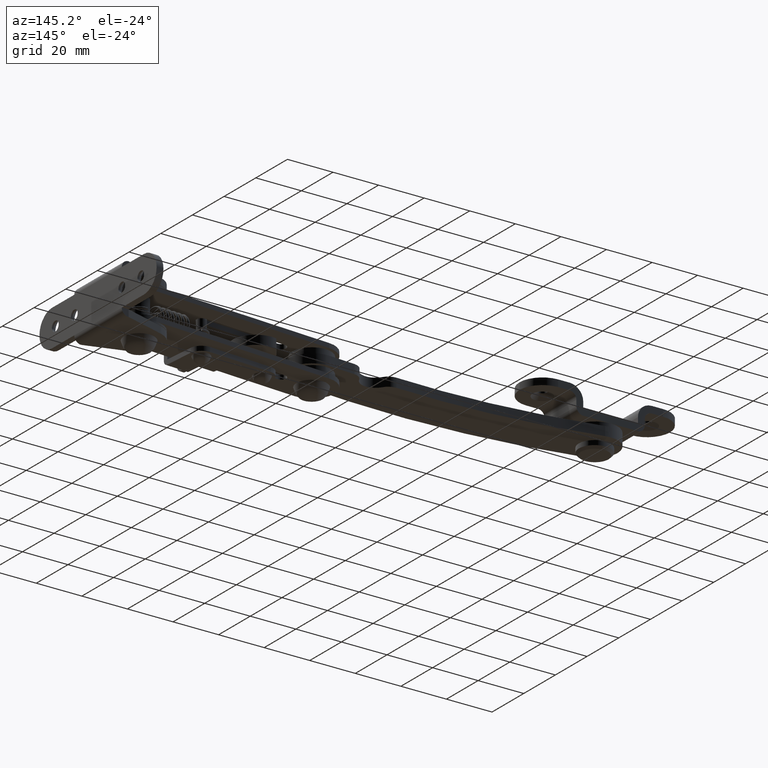
[diagram: clean part render]
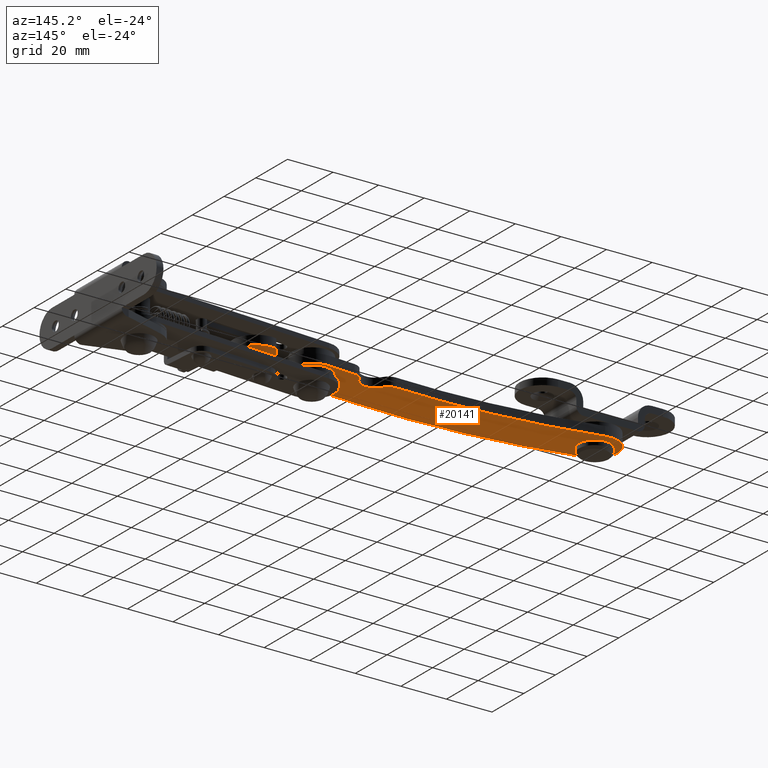
[diagram: same view with one face highlighted and labeled with its STEP entity id]
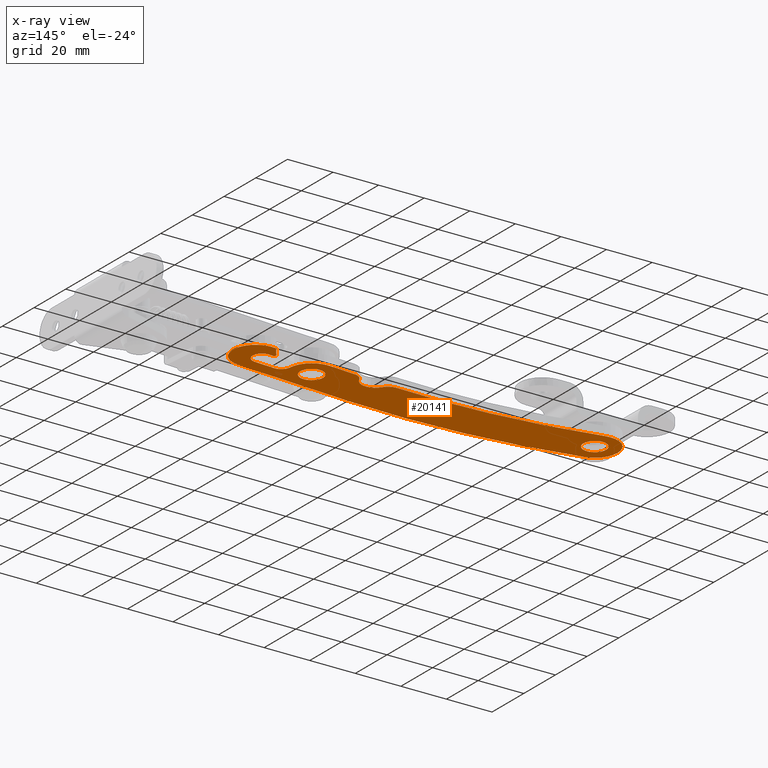
[diagram: x-ray of the same camera — body ghosted, the highlighted face saturated]
A machine part, auxiliary view. The second image highlights one B-rep face of the part: STEP entity #20141.
The next image is the same camera in x-ray: the body ghosted, the highlighted face saturated — about 0% of this face is hidden behind the body in this view.
In plain terms, the highlighted face is a freeform B-spline surface patch.
Its self-contained STEP definition (entity closure, byte-faithful):
#19511=CARTESIAN_POINT('',(-84.788350999999906,-5.815421000000001,-2.0));
#19512=VERTEX_POINT('',#19511);
#19513=CARTESIAN_POINT('',(-83.275510213567827,-9.398675092550821,-2.0));
#19514=VERTEX_POINT('',#19513);
#19515=CARTESIAN_POINT('',(-84.788350999999906,-5.815421000000001,-2.0));
#19516=CARTESIAN_POINT('',(-84.788931720960335,-6.439724145627165,-1.999999999999996));
#19517=CARTESIAN_POINT('',(-84.535506447734761,-7.770850359127526,-2.000000000000007));
#19518=CARTESIAN_POINT('',(-83.783319306921314,-8.905894034887666,-1.999999999999997));
#19519=CARTESIAN_POINT('',(-83.275510213567827,-9.398675092550821,-2.0));
#19520=B_SPLINE_CURVE_WITH_KNOTS('',3,(#19515,#19516,#19517,#19518,#19519),.UNSPECIFIED.,.F.,.U.,(4,1,4),(0.000000095102247,1.872697177985275,3.995045581834817),.UNSPECIFIED.);
#19521=EDGE_CURVE('',#19512,#19514,#19520,.T.);
#19523=CARTESIAN_POINT('',(-79.788355292563267,-0.815421000001843,-2.0));
#19524=VERTEX_POINT('',#19523);
#19525=CARTESIAN_POINT('',(-79.788355292563267,-0.815421000001843,-2.0));
#19526=CARTESIAN_POINT('',(-80.156492786757028,-0.815384814512204,-2.0));
#19527=CARTESIAN_POINT('',(-81.015542646682292,-0.910609526889808,-1.999999999999999));
#19528=CARTESIAN_POINT('',(-82.365992160470768,-1.431181861079022,-2.0));
#19529=CARTESIAN_POINT('',(-83.457034047185090,-2.326600122715894,-1.999999999999992));
#19530=CARTESIAN_POINT('',(-84.166767904567891,-3.335058403793417,-2.000000000000018));
#19531=CARTESIAN_POINT('',(-84.649980254992954,-4.424775511178697,-1.999999999999984));
#19532=CARTESIAN_POINT('',(-84.788620212822380,-5.283609012761139,-2.000000000000004));
#19533=CARTESIAN_POINT('',(-84.788350999999906,-5.815421000000001,-2.0));
#19534=B_SPLINE_CURVE_WITH_KNOTS('',3,(#19525,#19526,#19527,#19528,#19529,#19530,#19531,#19532,#19533),.UNSPECIFIED.,.F.,.U.,(4,1,1,1,1,1,4),(0.000000276248257,1.104458979310222,2.577173694218115,4.295184033422759,5.276996664739267,6.258814592202802,7.854176302263209),.UNSPECIFIED.);
#19535=EDGE_CURVE('',#19524,#19512,#19534,.T.);
#19537=CARTESIAN_POINT('',(-74.788350999999892,-5.815421000000001,-2.0));
#19538=VERTEX_POINT('',#19537);
#19539=CARTESIAN_POINT('',(-74.788350999999892,-5.815421000000001,-2.0));
#19540=CARTESIAN_POINT('',(-74.788288175906516,-5.447277528112433,-2.0));
#19541=CARTESIAN_POINT('',(-74.870056413698379,-4.710994160494185,-2.0));
#19542=CARTESIAN_POINT('',(-75.284877173262004,-3.504420092996745,-2.000000000000003));
#19543=CARTESIAN_POINT('',(-76.128457521297193,-2.274424862822200,-1.999999999999998));
#19544=CARTESIAN_POINT('',(-77.295561988879427,-1.408983350878549,-1.999999999999984));
#19545=CARTESIAN_POINT('',(-78.561262871616961,-0.921107224684289,-2.000000000000036));
#19546=CARTESIAN_POINT('',(-79.338385020031509,-0.815284408768726,-1.999999999999981));
#19547=CARTESIAN_POINT('',(-79.788355292563267,-0.815421000001843,-2.0));
#19548=B_SPLINE_CURVE_WITH_KNOTS('',3,(#19539,#19540,#19541,#19542,#19543,#19544,#19545,#19546,#19547),.UNSPECIFIED.,.F.,.U.,(4,1,1,1,1,1,4),(0.000000270373572,1.104459654429975,2.209001751290480,3.804398917488669,5.522453443067117,6.504271975497034,7.854181141103230),.UNSPECIFIED.);
#19549=EDGE_CURVE('',#19538,#19524,#19548,.T.);
#19551=CARTESIAN_POINT('',(-76.410398991674015,-9.501808244988993,-2.000000000033474));
#19552=VERTEX_POINT('',#19551);
#19553=CARTESIAN_POINT('',(-76.410398991674015,-9.501808244988993,-2.000000000033474));
#19554=CARTESIAN_POINT('',(-75.996259704665320,-9.122809819506125,-2.000000000030032));
#19555=CARTESIAN_POINT('',(-75.432472124418609,-8.396319215171070,-2.000000000023442));
#19556=CARTESIAN_POINT('',(-74.906188600082515,-7.110684568139142,-2.000000000011749));
#19557=CARTESIAN_POINT('',(-74.788148045852822,-6.290411538617271,-2.000000000004321));
#19558=CARTESIAN_POINT('',(-74.788350999999892,-5.815421000000001,-2.0));
#19559=B_SPLINE_CURVE_WITH_KNOTS('',3,(#19553,#19554,#19555,#19556,#19557,#19558),.UNSPECIFIED.,.F.,.U.,(4,1,1,4),(0.000000071100779,1.684036136903333,2.720318838654607,4.145272973169743),.UNSPECIFIED.);
#19560=EDGE_CURVE('',#19552,#19538,#19559,.T.);
#19640=CARTESIAN_POINT('',(-79.788346707436475,-10.815420999998160,-2.0));
#19641=VERTEX_POINT('',#19640);
#19642=CARTESIAN_POINT('',(-83.275510213567827,-9.398675092550821,-2.0));
#19643=CARTESIAN_POINT('',(-83.016270604559310,-9.651032556218191,-1.999999999999996));
#19644=CARTESIAN_POINT('',(-82.410849616189310,-10.124013935115350,-2.000000000000003));
#19645=CARTESIAN_POINT('',(-81.235385373366569,-10.669173568360909,-2.0));
#19646=CARTESIAN_POINT('',(-80.310949858571732,-10.815646522537760,-1.999999999999998));
#19647=CARTESIAN_POINT('',(-79.788346707436475,-10.815420999998160,-2.0));
#19648=B_SPLINE_CURVE_WITH_KNOTS('',3,(#19642,#19643,#19644,#19645,#19646,#19647),.UNSPECIFIED.,.F.,.U.,(4,1,1,4),(0.000000080225261,1.085384132295994,2.291335275245004,3.859136765245696),.UNSPECIFIED.);
#19649=EDGE_CURVE('',#19514,#19641,#19648,.T.);
#19673=CARTESIAN_POINT('',(-79.788346707436475,-10.815420999998160,-2.0));
#19674=CARTESIAN_POINT('',(-79.208776729432941,-10.815855079361331,-2.000000000005742));
#19675=CARTESIAN_POINT('',(-77.972858267119094,-10.597904826614100,-2.000000000017998));
#19676=CARTESIAN_POINT('',(-76.894195545416551,-9.946145296285026,-2.000000000028671));
#19677=CARTESIAN_POINT('',(-76.410398991674015,-9.501808244988993,-2.000000000033474));
#19678=B_SPLINE_CURVE_WITH_KNOTS('',3,(#19673,#19674,#19675,#19676,#19677),.UNSPECIFIED.,.F.,.U.,(4,1,4),(0.000000094177845,1.738574418628584,3.708904117308923),.UNSPECIFIED.);
#19679=EDGE_CURVE('',#19641,#19552,#19678,.T.);
#19710=CARTESIAN_POINT('',(-205.0,0.0,-2.0));
#19711=VERTEX_POINT('',#19710);
#19712=CARTESIAN_POINT('',(-203.487159213567990,-3.583254092550815,-2.0));
#19713=VERTEX_POINT('',#19712);
#19714=CARTESIAN_POINT('',(-205.0,0.0,-2.0));
#19715=CARTESIAN_POINT('',(-205.000521759162010,-0.624291567790946,-1.999999999999998));
#19716=CARTESIAN_POINT('',(-204.747247672153410,-1.955448795729696,-2.000000000000003));
#19717=CARTESIAN_POINT('',(-203.994935980477490,-3.090467272230687,-1.999999999999998));
#19718=CARTESIAN_POINT('',(-203.487159213567990,-3.583254092550815,-2.0));
#19719=B_SPLINE_CURVE_WITH_KNOTS('',3,(#19714,#19715,#19716,#19717,#19718),.UNSPECIFIED.,.F.,.U.,(4,1,4),(0.000000095100441,1.872697177984805,3.995045581834784),.UNSPECIFIED.);
#19720=EDGE_CURVE('',#19711,#19713,#19719,.T.);
#19722=CARTESIAN_POINT('',(-200.000004292563400,4.999999999998158,-2.0));
#19723=VERTEX_POINT('',#19722);
#19724=CARTESIAN_POINT('',(-200.000004292563400,4.999999999998158,-2.0));
#19725=CARTESIAN_POINT('',(-200.654602014344900,5.000676818404667,-1.999999999999994));
#19726=CARTESIAN_POINT('',(-201.758565184714310,4.779932675856867,-2.000000000000017));
#19727=CARTESIAN_POINT('',(-203.006718663757310,4.052221855991087,-1.999999999999979));
#19728=CARTESIAN_POINT('',(-203.810455788549290,3.286922955601273,-2.000000000000037));
#19729=CARTESIAN_POINT('',(-204.331096403778390,2.547607843291014,-1.999999999999959));
#19730=CARTESIAN_POINT('',(-204.839826123688510,1.472311092986196,-2.000000000000053));
#19731=CARTESIAN_POINT('',(-205.000578915605700,0.613703225390966,-1.999999999999981));
#19732=CARTESIAN_POINT('',(-205.0,0.0,-2.0));
#19733=B_SPLINE_CURVE_WITH_KNOTS('',3,(#19724,#19725,#19726,#19727,#19728,#19729,#19730,#19731,#19732),.UNSPECIFIED.,.F.,.U.,(4,1,1,1,1,1,4),(0.000000276241765,1.963545063107508,3.313546348395573,4.295184033417926,5.276996664735438,6.013356014765927,7.854176302263309),.UNSPECIFIED.);
#19734=EDGE_CURVE('',#19723,#19711,#19733,.T.);
#19736=CARTESIAN_POINT('',(-195.0,0.0,-2.0));
#19737=VERTEX_POINT('',#19736);
#19738=CARTESIAN_POINT('',(-195.0,0.0,-2.0));
#19739=CARTESIAN_POINT('',(-194.999964871254490,0.368135711623630,-2.0));
#19740=CARTESIAN_POINT('',(-195.095189782965290,1.227190166885058,-2.0));
#19741=CARTESIAN_POINT('',(-195.615750090610190,2.577643608658196,-2.0));
#19742=CARTESIAN_POINT('',(-196.563880176282310,3.732861726087164,-2.000000000000002));
#19743=CARTESIAN_POINT('',(-197.660742192958000,4.465333288401948,-1.999999999999990));
#19744=CARTESIAN_POINT('',(-198.772894848237000,4.894337096012547,-2.000000000000018));
#19745=CARTESIAN_POINT('',(-199.550031510852390,5.000153768885373,-1.999999999999989));
#19746=CARTESIAN_POINT('',(-200.000004292563400,4.999999999998158,-2.0));
#19747=B_SPLINE_CURVE_WITH_KNOTS('',3,(#19738,#19739,#19740,#19741,#19742,#19743,#19744,#19745,#19746),.UNSPECIFIED.,.F.,.U.,(4,1,1,1,1,1,4),(0.000000270363371,1.104459654421302,2.577175276281683,4.295186676839771,5.522453443065943,6.504271975496721,7.854181141103240),.UNSPECIFIED.);
#19748=EDGE_CURVE('',#19737,#19723,#19747,.T.);
#19750=CARTESIAN_POINT('',(-196.622047991674090,-3.686387244989001,-2.000000000033474));
#19751=VERTEX_POINT('',#19750);
#19752=CARTESIAN_POINT('',(-196.622047991674090,-3.686387244989001,-2.000000000033474));
#19753=CARTESIAN_POINT('',(-196.207869154207600,-3.307418674365055,-2.000000000030037));
#19754=CARTESIAN_POINT('',(-195.644157481780500,-2.580875579495114,-2.000000000023432));
#19755=CARTESIAN_POINT('',(-195.117823147005200,-1.295266385144715,-2.000000000011760));
#19756=CARTESIAN_POINT('',(-194.999809252774500,-0.474990584514368,-2.000000000004318));
#19757=CARTESIAN_POINT('',(-195.0,0.0,-2.0));
#19758=B_SPLINE_CURVE_WITH_KNOTS('',3,(#19752,#19753,#19754,#19755,#19756,#19757),.UNSPECIFIED.,.F.,.U.,(4,1,1,4),(0.000000071102684,1.684036136903630,2.720318838654617,4.145272973169752),.UNSPECIFIED.);
#19759=EDGE_CURVE('',#19751,#19737,#19758,.T.);
#19839=CARTESIAN_POINT('',(-199.999995707436600,-4.999999999998158,-2.0));
#19840=VERTEX_POINT('',#19839);
#19841=CARTESIAN_POINT('',(-203.487159213567990,-3.583254092550815,-2.0));
#19842=CARTESIAN_POINT('',(-203.112823244218790,-3.947968763721883,-2.0));
#19843=CARTESIAN_POINT('',(-202.414591923277900,-4.440582645822707,-2.000000000000002));
#19844=CARTESIAN_POINT('',(-201.205881048739200,-4.898006576356504,-1.999999999999998));
#19845=CARTESIAN_POINT('',(-200.442193534959900,-5.000126444860298,-2.000000000000003));
#19846=CARTESIAN_POINT('',(-199.999995707436600,-4.999999999998158,-2.0));
#19847=B_SPLINE_CURVE_WITH_KNOTS('',3,(#19841,#19842,#19843,#19844,#19845,#19846),.UNSPECIFIED.,.F.,.U.,(4,1,1,4),(0.000000080226125,1.567801570090218,2.532542669967435,3.859136765245747),.UNSPECIFIED.);
#19848=EDGE_CURVE('',#19713,#19840,#19847,.T.);
#19871=CARTESIAN_POINT('',(-199.999995707436600,-4.999999999998158,-2.0));
#19872=CARTESIAN_POINT('',(-199.420432088071290,-5.000414941167579,-2.000000000005742));
#19873=CARTESIAN_POINT('',(-198.184469815235390,-4.782563716143690,-2.000000000017994));
#19874=CARTESIAN_POINT('',(-197.105882371912910,-4.130656723435116,-2.000000000028676));
#19875=CARTESIAN_POINT('',(-196.622047991674090,-3.686387244989001,-2.000000000033474));
#19876=B_SPLINE_CURVE_WITH_KNOTS('',3,(#19871,#19872,#19873,#19874,#19875),.UNSPECIFIED.,.F.,.U.,(4,1,4),(0.000000094178433,1.738574418628312,3.708904117308962),.UNSPECIFIED.);
#19877=EDGE_CURVE('',#19840,#19751,#19876,.T.);
#19882=CARTESIAN_POINT('',(-35.558285765473457,11.416736164405750,-2.0));
#19883=CARTESIAN_POINT('',(-218.296769145892710,11.416736164405750,-2.0));
#19884=CARTESIAN_POINT('',(-35.558285765473457,-19.823862003235590,-2.0));
#19885=CARTESIAN_POINT('',(-218.296769145892710,-19.823862003235590,-2.0));
#19886=B_SPLINE_SURFACE_WITH_KNOTS('',1,1,((#19882,#19884),(#19883,#19885)),.UNSPECIFIED.,.F.,.F.,.U.,(2,2),(2,2),(0.0,182.738483380419210),(0.0,31.240598167641341),.UNSPECIFIED.);
#19887=CARTESIAN_POINT('',(-92.186359999999993,3.307469000000000,-2.0));
#19888=VERTEX_POINT('',#19887);
#19889=CARTESIAN_POINT('',(-96.429942866314803,0.263665469242773,-2.0));
#19890=VERTEX_POINT('',#19889);
#19891=CARTESIAN_POINT('',(-92.186359999999993,3.307469000000000,-2.0));
#19892=CARTESIAN_POINT('',(-92.757297959450426,3.266260052117344,-1.999999999999997));
#19893=CARTESIAN_POINT('',(-93.799681576441358,3.005541669610911,-2.000000000000007));
#19894=CARTESIAN_POINT('',(-95.023385090222774,2.234751224883549,-1.999999999999998));
#19895=CARTESIAN_POINT('',(-95.887962179156091,1.308462542587660,-2.000000000000004));
#19896=CARTESIAN_POINT('',(-96.274326995163548,0.632866704402308,-1.999999999999999));
#19897=CARTESIAN_POINT('',(-96.429942866314803,0.263665469242773,-2.0));
#19898=B_SPLINE_CURVE_WITH_KNOTS('',3,(#19891,#19892,#19893,#19894,#19895,#19896,#19897),.UNSPECIFIED.,.F.,.U.,(4,1,1,1,4),(0.000000211328802,1.717114540084516,3.176644864646243,4.292773350805315,5.494740645932948),.UNSPECIFIED.);
#19899=EDGE_CURVE('',#19888,#19890,#19898,.T.);
#19900=ORIENTED_EDGE('',*,*,#19899,.F.);
#19901=CARTESIAN_POINT('',(-80.918719195116793,4.128717940007211,-2.0));
#19902=VERTEX_POINT('',#19901);
#19903=CARTESIAN_POINT('',(-80.918719195116793,4.128717940007211,-2.0));
#19904=CARTESIAN_POINT('',(-92.186359999999993,3.307469000000000,-2.0));
#19905=QUASI_UNIFORM_CURVE('',1,(#19903,#19904),.UNSPECIFIED.,.F.,.U.);
#19906=EDGE_CURVE('',#19902,#19888,#19905,.T.);
#19907=ORIENTED_EDGE('',*,*,#19906,.F.);
#19908=CARTESIAN_POINT('',(-69.794255091298893,-5.284687090792980,-2.0));
#19909=VERTEX_POINT('',#19908);
#19910=CARTESIAN_POINT('',(-69.794255091298893,-5.284687090792980,-2.0));
#19911=CARTESIAN_POINT('',(-69.856471819187220,-4.095967069323744,-2.000000000000005));
#19912=CARTESIAN_POINT('',(-70.253968447017172,-2.415094185332521,-1.999999999999994));
#19913=CARTESIAN_POINT('',(-71.330225878230948,-0.379940983263887,-2.000000000000005));
#19914=CARTESIAN_POINT('',(-72.443444743328541,1.078838472794587,-1.999999999999999));
#19915=CARTESIAN_POINT('',(-74.144909155038505,2.575680002505811,-1.999999999999994));
#19916=CARTESIAN_POINT('',(-76.170189576117068,3.611916248749655,-2.000000000000008));
#19917=CARTESIAN_POINT('',(-78.531090039385163,4.198366088733373,-1.999999999999979));
#19918=CARTESIAN_POINT('',(-80.031799040218772,4.229847638465271,-2.000000000000028));
#19919=CARTESIAN_POINT('',(-80.918719195116793,4.128717940007211,-2.0));
#19920=B_SPLINE_CURVE_WITH_KNOTS('',3,(#19910,#19911,#19912,#19913,#19914,#19915,#19916,#19917,#19918,#19919),.UNSPECIFIED.,.F.,.U.,(4,1,1,1,1,1,1,4),(0.000000325597121,3.570582351706927,5.100860553462065,6.886215978141378,9.053928641832957,11.859473305756030,13.644800294678060,16.322722378079771),.UNSPECIFIED.);
#19921=EDGE_CURVE('',#19909,#19902,#19920,.T.);
#19922=ORIENTED_EDGE('',*,*,#19921,.F.);
#19923=CARTESIAN_POINT('',(-65.426976924390701,-8.870143899293268,-2.0));
#19924=VERTEX_POINT('',#19923);
#19925=CARTESIAN_POINT('',(-69.794255091298893,-5.284687090792980,-2.0));
#19926=CARTESIAN_POINT('',(-69.723323331819330,-5.864994813084483,-2.0));
#19927=CARTESIAN_POINT('',(-69.436495738974557,-6.679344344186184,-2.000000000000004));
#19928=CARTESIAN_POINT('',(-68.690460117137306,-7.669098191899468,-1.999999999999997));
#19929=CARTESIAN_POINT('',(-67.828712159298718,-8.376951215688662,-1.999999999999997));
#19930=CARTESIAN_POINT('',(-66.666319315338811,-8.839152058503458,-2.000000000000010));
#19931=CARTESIAN_POINT('',(-65.815556012476236,-8.898610155486020,-1.999999999999998));
#19932=CARTESIAN_POINT('',(-65.426976924390701,-8.870143899293268,-2.0));
#19933=B_SPLINE_CURVE_WITH_KNOTS('',3,(#19925,#19926,#19927,#19928,#19929,#19930,#19931,#19932),.UNSPECIFIED.,.F.,.U.,(4,1,1,1,1,4),(0.000000430223754,1.753341825283300,2.532647464503808,3.701410686798994,5.065175280165926,6.234057721081355),.UNSPECIFIED.);
#19934=EDGE_CURVE('',#19909,#19924,#19933,.T.);
#19935=ORIENTED_EDGE('',*,*,#19934,.T.);
#19936=CARTESIAN_POINT('',(-56.550587276168599,-8.222547400474220,-2.0));
#19937=VERTEX_POINT('',#19936);
#19938=CARTESIAN_POINT('',(-56.550587276168599,-8.222547400474220,-2.0));
#19939=CARTESIAN_POINT('',(-65.426976924390701,-8.870143899293268,-2.0));
#19940=QUASI_UNIFORM_CURVE('',1,(#19938,#19939),.UNSPECIFIED.,.F.,.U.);
#19941=EDGE_CURVE('',#19937,#19924,#19940,.T.);
#19942=ORIENTED_EDGE('',*,*,#19941,.F.);
#19943=CARTESIAN_POINT('',(-52.760344547808259,-3.827295574336168,-2.0));
#19944=VERTEX_POINT('',#19943);
#19945=CARTESIAN_POINT('',(-56.550587276168599,-8.222547400474220,-2.0));
#19946=CARTESIAN_POINT('',(-56.048049119864572,-8.186360390095064,-2.000000000000003));
#19947=CARTESIAN_POINT('',(-55.288561599549027,-7.985841606362258,-2.0));
#19948=CARTESIAN_POINT('',(-54.391139373647732,-7.448115691017598,-1.999999999999999));
#19949=CARTESIAN_POINT('',(-53.791042255251902,-6.904233319366627,-2.000000000000002));
#19950=CARTESIAN_POINT('',(-53.288651506453903,-6.226490225031332,-1.999999999999996));
#19951=CARTESIAN_POINT('',(-52.824618248044452,-5.212531622101427,-2.000000000000012));
#19952=CARTESIAN_POINT('',(-52.719646243917083,-4.363198950654213,-1.999999999999982));
#19953=CARTESIAN_POINT('',(-52.760344547808259,-3.827295574336168,-2.0));
#19954=B_SPLINE_CURVE_WITH_KNOTS('',3,(#19945,#19946,#19947,#19948,#19949,#19950,#19951,#19952,#19953),.UNSPECIFIED.,.F.,.U.,(4,1,1,1,1,1,4),(0.000000428301348,1.511301879306830,2.317354596842582,3.123428024045169,3.929343065691260,4.836184573402721,6.448245956228643),.UNSPECIFIED.);
#19955=EDGE_CURVE('',#19937,#19944,#19954,.T.);
#19956=ORIENTED_EDGE('',*,*,#19955,.T.);
#19957=CARTESIAN_POINT('',(-57.162790092886993,-0.045410888405738,-2.0));
#19958=VERTEX_POINT('',#19957);
#19959=CARTESIAN_POINT('',(-52.760344547808259,-3.827295574336168,-2.0));
#19960=CARTESIAN_POINT('',(-52.797490477495991,-3.324839867847665,-1.999999999999999));
#19961=CARTESIAN_POINT('',(-53.017014830528751,-2.499694864396662,-1.999999999999999));
#19962=CARTESIAN_POINT('',(-53.724795377842781,-1.385749240167113,-2.000000000000001));
#19963=CARTESIAN_POINT('',(-54.577919433569129,-0.652983119749935,-1.999999999999998));
#19964=CARTESIAN_POINT('',(-55.777456690133398,-0.107080429423319,-2.000000000000007));
#19965=CARTESIAN_POINT('',(-56.626963434280391,-0.003693024814359,-1.999999999999981));
#19966=CARTESIAN_POINT('',(-57.162790092886993,-0.045410888405738,-2.0));
#19967=B_SPLINE_CURVE_WITH_KNOTS('',3,(#19959,#19960,#19961,#19962,#19963,#19964,#19965,#19966),.UNSPECIFIED.,.F.,.U.,(4,1,1,1,1,4),(0.000000428301570,1.511301879307455,2.518903113248466,3.929343065691813,4.836184573403075,6.448245956228585),.UNSPECIFIED.);
#19968=EDGE_CURVE('',#19944,#19958,#19967,.T.);
#19969=ORIENTED_EDGE('',*,*,#19968,.T.);
#19970=CARTESIAN_POINT('',(-59.642173624790900,-0.226279617267992,-2.0));
#19971=VERTEX_POINT('',#19970);
#19972=CARTESIAN_POINT('',(-59.642173624790900,-0.226279617267992,-2.0));
#19973=CARTESIAN_POINT('',(-57.162790092886993,-0.045410888405738,-2.0));
#19974=QUASI_UNIFORM_CURVE('',1,(#19972,#19973),.UNSPECIFIED.,.F.,.U.);
#19975=EDGE_CURVE('',#19971,#19958,#19974,.T.);
#19976=ORIENTED_EDGE('',*,*,#19975,.F.);
#19977=CARTESIAN_POINT('',(-59.715329715130302,0.771041611744623,-2.0));
#19978=VERTEX_POINT('',#19977);
#19979=CARTESIAN_POINT('',(-59.715329715130302,0.771041611744623,-2.0));
#19980=CARTESIAN_POINT('',(-59.642173624790900,-0.226279617267992,-2.0));
#19981=QUASI_UNIFORM_CURVE('',1,(#19979,#19980),.UNSPECIFIED.,.F.,.U.);
#19982=EDGE_CURVE('',#19978,#19971,#19981,.T.);
#19983=ORIENTED_EDGE('',*,*,#19982,.F.);
#19984=CARTESIAN_POINT('',(-56.181020907877901,5.811027640821000,-2.0));
#19985=VERTEX_POINT('',#19984);
#19986=CARTESIAN_POINT('',(-56.181020907877901,5.811027640821000,-2.0));
#19987=CARTESIAN_POINT('',(-59.715329715130302,0.771041611744623,-2.0));
#19988=QUASI_UNIFORM_CURVE('',1,(#19986,#19987),.UNSPECIFIED.,.F.,.U.);
#19989=EDGE_CURVE('',#19985,#19978,#19988,.T.);
#19990=ORIENTED_EDGE('',*,*,#19989,.F.);
#19991=CARTESIAN_POINT('',(-43.984947721890457,-2.319929135162489,-2.0));
#19992=VERTEX_POINT('',#19991);
#19993=CARTESIAN_POINT('',(-43.984947721890457,-2.319929135162489,-2.0));
#19994=CARTESIAN_POINT('',(-44.114599097572821,-1.516293044250823,-2.000000000000014));
#19995=CARTESIAN_POINT('',(-44.475640359720607,-0.272802681943528,-1.999999999999993));
#19996=CARTESIAN_POINT('',(-45.399021691855268,1.522285683057435,-1.999999999999999));
#19997=CARTESIAN_POINT('',(-46.659101476704770,3.162984844021812,-2.000000000000012));
#19998=CARTESIAN_POINT('',(-48.274006886782061,4.463478721072548,-1.999999999999986));
#19999=CARTESIAN_POINT('',(-49.989547280801787,5.353699536693743,-2.000000000000005));
#20000=CARTESIAN_POINT('',(-51.501275455372351,5.851510652387903,-1.999999999999999));
#20001=CARTESIAN_POINT('',(-53.625349254984670,6.174893822160672,-2.000000000000004));
#20002=CARTESIAN_POINT('',(-55.181014311436158,6.050546200793963,-1.999999999999992));
#20003=CARTESIAN_POINT('',(-56.181020907877901,5.811027640821000,-2.0));
#20004=B_SPLINE_CURVE_WITH_KNOTS('',3,(#19993,#19994,#19995,#19996,#19997,#19998,#19999,#20000,#20001,#20002,#20003),.UNSPECIFIED.,.F.,.U.,(4,1,1,1,1,1,1,1,4),(0.000000317072040,2.442034193618344,3.855843221125147,6.040838069777005,8.611370300917107,10.025172702280271,11.824581711255091,13.366946863308380,16.451594321075909),.UNSPECIFIED.);
#20005=EDGE_CURVE('',#19992,#19985,#20004,.T.);
#20006=ORIENTED_EDGE('',*,*,#20005,.F.);
#20007=CARTESIAN_POINT('',(-52.999404670074703,-13.878312489965021,-2.0));
#20008=VERTEX_POINT('',#20007);
#20009=CARTESIAN_POINT('',(-52.999404670074703,-13.878312489965021,-2.0));
#20010=CARTESIAN_POINT('',(-51.974858336979047,-13.790625516112071,-2.000000000000001));
#20011=CARTESIAN_POINT('',(-50.417112570754881,-13.408404868471070,-2.000000000000002));
#20012=CARTESIAN_POINT('',(-48.317331716359412,-12.320920210629890,-1.999999999999999));
#20013=CARTESIAN_POINT('',(-46.871933948082813,-11.158992650664921,-2.0));
#20014=CARTESIAN_POINT('',(-45.569443131248462,-9.615502347261321,-2.000000000000002));
#20015=CARTESIAN_POINT('',(-44.551170769758727,-7.814736058157132,-1.999999999999998));
#20016=CARTESIAN_POINT('',(-43.815372178295043,-5.286666800281473,-2.0));
#20017=CARTESIAN_POINT('',(-43.813488539080659,-3.377248013298266,-2.000000000000011));
#20018=CARTESIAN_POINT('',(-43.984947721890457,-2.319929135162489,-2.0));
#20019=B_SPLINE_CURVE_WITH_KNOTS('',3,(#20009,#20010,#20011,#20012,#20013,#20014,#20015,#20016,#20017,#20018),.UNSPECIFIED.,.F.,.U.,(4,1,1,1,1,1,1,4),(0.000000317060799,3.084658940123020,4.755556895508077,7.069067007620001,8.611370316564649,10.796344353314010,13.238398908795061,16.451594350977619),.UNSPECIFIED.);
#20020=EDGE_CURVE('',#20008,#19992,#20019,.T.);
#20021=ORIENTED_EDGE('',*,*,#20020,.F.);
#20022=CARTESIAN_POINT('',(-55.032597992576001,-14.037570268062760,-2.0));
#20023=VERTEX_POINT('',#20022);
#20024=CARTESIAN_POINT('',(-55.032597992576001,-14.037570268062760,-2.0));
#20025=CARTESIAN_POINT('',(-52.999404670074703,-13.878312489965021,-2.0));
#20026=QUASI_UNIFORM_CURVE('',1,(#20024,#20025),.UNSPECIFIED.,.F.,.U.);
#20027=EDGE_CURVE('',#20023,#20008,#20026,.T.);
#20028=ORIENTED_EDGE('',*,*,#20027,.F.);
#20029=CARTESIAN_POINT('',(-105.109686107376600,-17.680460348629602,-2.0));
#20030=VERTEX_POINT('',#20029);
#20031=CARTESIAN_POINT('',(-105.109686107376600,-17.680460348629602,-2.0));
#20032=CARTESIAN_POINT('',(-55.032597992576001,-14.037570268062760,-2.0));
#20033=QUASI_UNIFORM_CURVE('',1,(#20031,#20032),.UNSPECIFIED.,.F.,.U.);
#20034=EDGE_CURVE('',#20030,#20023,#20033,.T.);
#20035=ORIENTED_EDGE('',*,*,#20034,.F.);
#20036=CARTESIAN_POINT('',(-202.273549594403990,-9.738119543412120,-2.0));
#20037=VERTEX_POINT('',#20036);
#20038=CARTESIAN_POINT('',(-202.273549594403990,-9.738119543412120,-2.0));
#20039=CARTESIAN_POINT('',(-154.282869479642410,-20.942458850689132,-2.000000000000000));
#20040=CARTESIAN_POINT('',(-105.109686107376700,-17.680460348629520,-2.0));
#20048=(BOUNDED_CURVE()B_SPLINE_CURVE(2,(#20038,#20039,#20040),.UNSPECIFIED.,.F.,.U.)CURVE()GEOMETRIC_REPRESENTATION_ITEM()QUASI_UNIFORM_CURVE()RATIONAL_B_SPLINE_CURVE((1.0,0.989097409568606,1.0))REPRESENTATION_ITEM(''));
#20049=EDGE_CURVE('',#20037,#20030,#20048,.T.);
#20050=ORIENTED_EDGE('',*,*,#20049,.F.);
#20051=CARTESIAN_POINT('',(-209.738120362302000,2.273546086913526,-2.0));
#20052=VERTEX_POINT('',#20051);
#20053=CARTESIAN_POINT('',(-209.738120362302000,2.273546086913526,-2.0));
#20054=CARTESIAN_POINT('',(-209.877647400488090,1.676038462332766,-1.999999999999998));
#20055=CARTESIAN_POINT('',(-210.068902496960190,0.292454749398031,-2.000000000000003));
#20056=CARTESIAN_POINT('',(-209.910599753024000,-1.925884626173666,-1.999999999999997));
#20057=CARTESIAN_POINT('',(-209.192553547762910,-4.162777731075307,-2.000000000000008));
#20058=CARTESIAN_POINT('',(-208.063899529239790,-6.029333395725431,-1.999999999999991));
#20059=CARTESIAN_POINT('',(-206.641609677171800,-7.567656920852143,-2.000000000000013));
#20060=CARTESIAN_POINT('',(-204.768608411585010,-8.910705115528334,-1.999999999999979));
#20061=CARTESIAN_POINT('',(-203.189861597645200,-9.524552913153300,-2.000000000000030));
#20062=CARTESIAN_POINT('',(-202.273549594403990,-9.738119543412120,-2.0));
#20063=B_SPLINE_CURVE_WITH_KNOTS('',3,(#20053,#20054,#20055,#20056,#20057,#20058,#20059,#20060,#20061,#20062),.UNSPECIFIED.,.F.,.U.,(4,1,1,1,1,1,1,4),(0.000000289923166,1.840776655805728,4.172460129104174,6.626884475838114,8.835771046946983,10.676563405484130,12.885526250739080,15.708059676062170),.UNSPECIFIED.);
#20064=EDGE_CURVE('',#20052,#20037,#20063,.T.);
#20065=ORIENTED_EDGE('',*,*,#20064,.F.);
#20066=CARTESIAN_POINT('',(-197.726451385967010,9.738119199882990,-2.0));
#20067=VERTEX_POINT('',#20066);
#20068=CARTESIAN_POINT('',(-197.726451385967010,9.738119199882990,-2.0));
#20069=CARTESIAN_POINT('',(-198.523116950478510,9.924345192234638,-2.000000000000003));
#20070=CARTESIAN_POINT('',(-199.916479369167290,10.073117087525310,-1.999999999999996));
#20071=CARTESIAN_POINT('',(-201.795294827850110,9.880778482604841,-2.000000000000003));
#20072=CARTESIAN_POINT('',(-203.697289709625490,9.372031748304659,-1.999999999999990));
#20073=CARTESIAN_POINT('',(-205.610899260763290,8.399628563654582,-2.000000000000029));
#20074=CARTESIAN_POINT('',(-207.319148625954110,6.914416314365179,-1.999999999999958));
#20075=CARTESIAN_POINT('',(-208.816416166368610,4.956385889965198,-2.000000000000046));
#20076=CARTESIAN_POINT('',(-209.487617441773010,3.349323565449451,-1.999999999999977));
#20077=CARTESIAN_POINT('',(-209.738120362302000,2.273546086913526,-2.0));
#20078=B_SPLINE_CURVE_WITH_KNOTS('',3,(#20068,#20069,#20070,#20071,#20072,#20073,#20074,#20075,#20076,#20077),.UNSPECIFIED.,.F.,.U.,(4,1,1,1,1,1,1,4),(0.000000288897658,2.454370964356993,4.172460991938825,5.645104459823402,8.344823218853993,10.553822815296920,12.394659627388490,15.708062927930470),.UNSPECIFIED.);
#20079=EDGE_CURVE('',#20067,#20052,#20078,.T.);
#20080=ORIENTED_EDGE('',*,*,#20079,.F.);
#20081=CARTESIAN_POINT('',(-111.663526532813610,1.972955626864120,-2.0));
#20082=VERTEX_POINT('',#20081);
#20083=CARTESIAN_POINT('',(-197.726451385966900,9.738119199883100,-2.0));
#20084=CARTESIAN_POINT('',(-155.239665903184770,-0.181230575121427,-2.000000000000000));
#20085=CARTESIAN_POINT('',(-111.663526532813610,1.972955626864120,-2.0));
#20093=(BOUNDED_CURVE()B_SPLINE_CURVE(2,(#20083,#20084,#20085),.UNSPECIFIED.,.F.,.U.)CURVE()GEOMETRIC_REPRESENTATION_ITEM()QUASI_UNIFORM_CURVE()RATIONAL_B_SPLINE_CURVE((1.0,0.990302639937539,1.0))REPRESENTATION_ITEM(''));
#20094=EDGE_CURVE('',#20067,#20082,#20093,.T.);
#20095=ORIENTED_EDGE('',*,*,#20094,.T.);
#20096=CARTESIAN_POINT('',(-107.117446242020190,-0.468139629995874,-2.0));
#20097=VERTEX_POINT('',#20096);
#20098=CARTESIAN_POINT('',(-107.117446242020190,-0.468139629995874,-2.0));
#20099=CARTESIAN_POINT('',(-107.448513766914600,0.090815512422672,-1.999999999999998));
#20100=CARTESIAN_POINT('',(-108.083005334662500,0.797073624396430,-2.000000000000001));
#20101=CARTESIAN_POINT('',(-109.283218797474900,1.550530439096433,-2.000000000000001));
#20102=CARTESIAN_POINT('',(-110.389168092909400,1.931574385915796,-2.0));
#20103=CARTESIAN_POINT('',(-111.268680305353300,1.992530640743709,-2.0));
#20104=CARTESIAN_POINT('',(-111.663526532813610,1.972955626864120,-2.0));
#20105=B_SPLINE_CURVE_WITH_KNOTS('',3,(#20098,#20099,#20100,#20101,#20102,#20103,#20104),.UNSPECIFIED.,.F.,.U.,(4,1,1,1,4),(0.000000197777916,1.948499156734056,2.795571172584126,4.235814117990135,5.421833201370680),.UNSPECIFIED.);
#20106=EDGE_CURVE('',#20097,#20082,#20105,.T.);
#20107=ORIENTED_EDGE('',*,*,#20106,.F.);
#20108=CARTESIAN_POINT('',(-107.117446242020190,-0.468139629995874,-2.0));
#20109=CARTESIAN_POINT('',(-106.800829966409400,-1.001936375724977,-2.000000000000001));
#20110=CARTESIAN_POINT('',(-106.066582987847990,-1.889059682621405,-1.999999999999994));
#20111=CARTESIAN_POINT('',(-104.771172520879500,-2.766404085889550,-2.000000000000011));
#20112=CARTESIAN_POINT('',(-103.507130131739500,-3.245885741172921,-1.999999999999991));
#20113=CARTESIAN_POINT('',(-102.171638895399700,-3.455665515178723,-1.999999999999997));
#20114=CARTESIAN_POINT('',(-100.889090363692300,-3.356736059281214,-1.999999999999997));
#20115=CARTESIAN_POINT('',(-99.530394095843889,-2.947629252627629,-2.000000000000007));
#20116=CARTESIAN_POINT('',(-98.319712809242404,-2.260030142375245,-2.000000000000002));
#20117=CARTESIAN_POINT('',(-97.178613304958390,-1.141786307827148,-1.999999999999999));
#20118=CARTESIAN_POINT('',(-96.644155128979193,-0.244725305468604,-2.0));
#20119=CARTESIAN_POINT('',(-96.429942866314803,0.263665469242773,-2.0));
#20120=B_SPLINE_CURVE_WITH_KNOTS('',3,(#20108,#20109,#20110,#20111,#20112,#20113,#20114,#20115,#20116,#20117,#20118,#20119),.UNSPECIFIED.,.F.,.U.,(4,1,1,1,1,1,1,1,1,4),(0.000000678399429,1.861863585190246,3.413459725172942,4.654743745067650,5.895987698513512,7.447436857984942,8.481866247981461,10.136930515019820,11.585071164410611,13.240065834862300),.UNSPECIFIED.);
#20121=EDGE_CURVE('',#20097,#19890,#20120,.T.);
#20122=ORIENTED_EDGE('',*,*,#20121,.T.);
#20123=EDGE_LOOP('',(#19900,#19907,#19922,#19935,#19942,#19956,#19969,#19976,#19983,#19990,#20006,#20021,#20028,#20035,#20050,#20065,#20080,#20095,#20107,#20122));
#20124=FACE_OUTER_BOUND('',#20123,.T.);
#20125=ORIENTED_EDGE('',*,*,#19748,.T.);
#20126=ORIENTED_EDGE('',*,*,#19734,.T.);
#20127=ORIENTED_EDGE('',*,*,#19720,.T.);
#20128=ORIENTED_EDGE('',*,*,#19848,.T.);
#20129=ORIENTED_EDGE('',*,*,#19877,.T.);
#20130=ORIENTED_EDGE('',*,*,#19759,.T.);
#20131=EDGE_LOOP('',(#20125,#20126,#20127,#20128,#20129,#20130));
#20132=FACE_BOUND('',#20131,.T.);
#20133=ORIENTED_EDGE('',*,*,#19549,.T.);
#20134=ORIENTED_EDGE('',*,*,#19535,.T.);
#20135=ORIENTED_EDGE('',*,*,#19521,.T.);
#20136=ORIENTED_EDGE('',*,*,#19649,.T.);
#20137=ORIENTED_EDGE('',*,*,#19679,.T.);
#20138=ORIENTED_EDGE('',*,*,#19560,.T.);
#20139=EDGE_LOOP('',(#20133,#20134,#20135,#20136,#20137,#20138));
#20140=FACE_BOUND('',#20139,.T.);
#20141=ADVANCED_FACE('',(#20124,#20132,#20140),#19886,.F.);